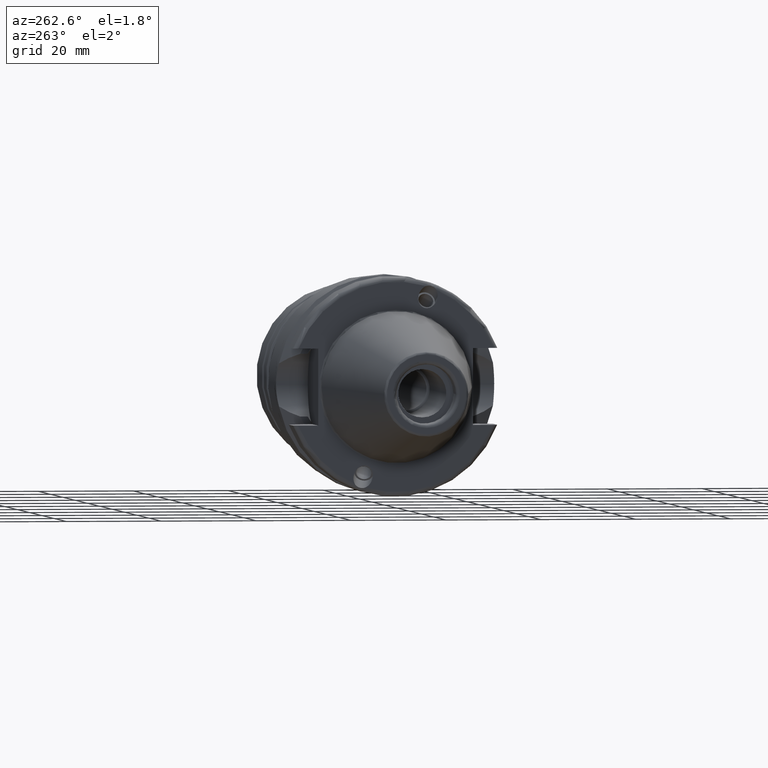
[diagram: clean part render]
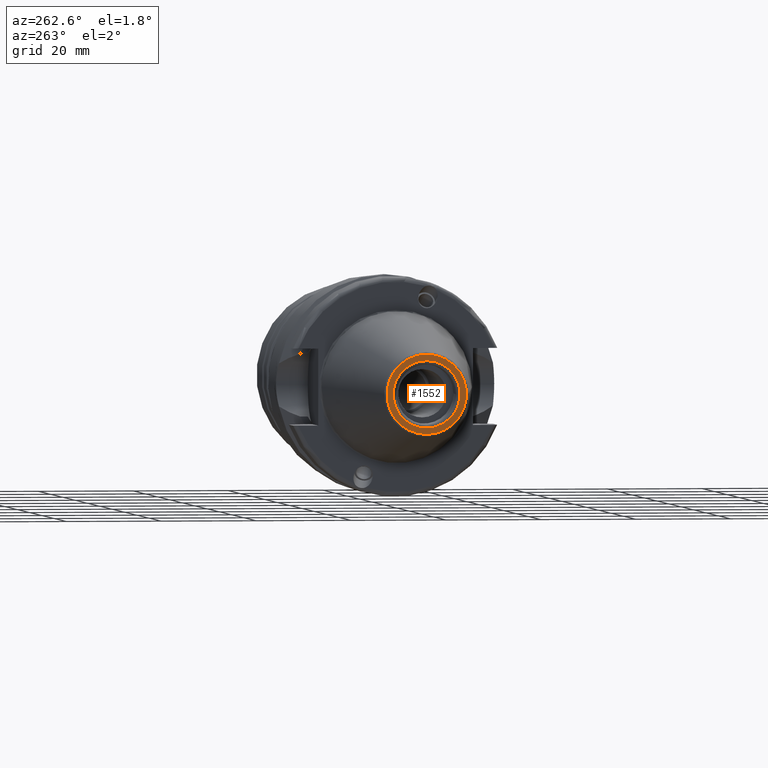
[diagram: same view with one face highlighted and labeled with its STEP entity id]
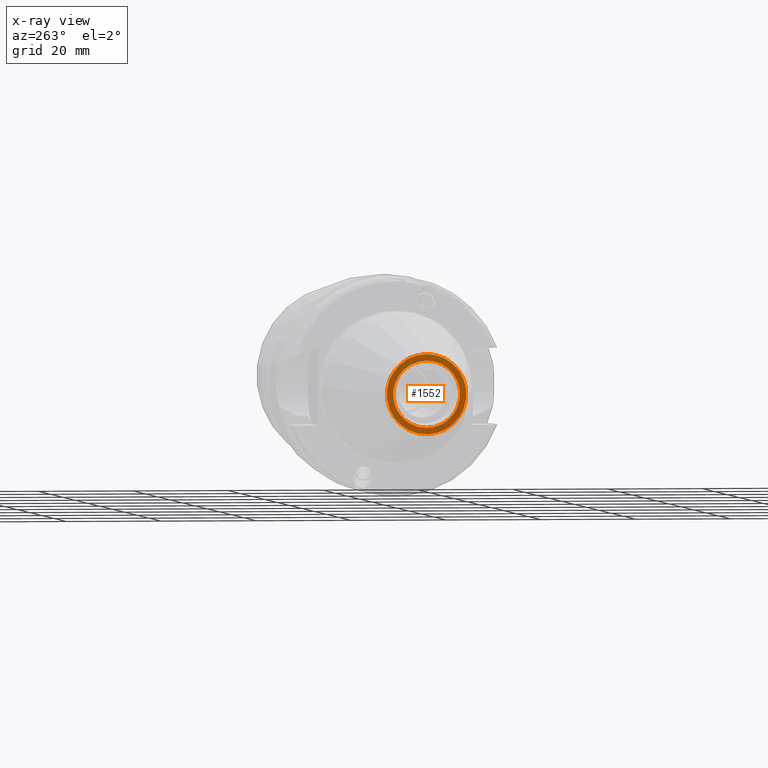
[diagram: x-ray of the same camera — body ghosted, the highlighted face saturated]
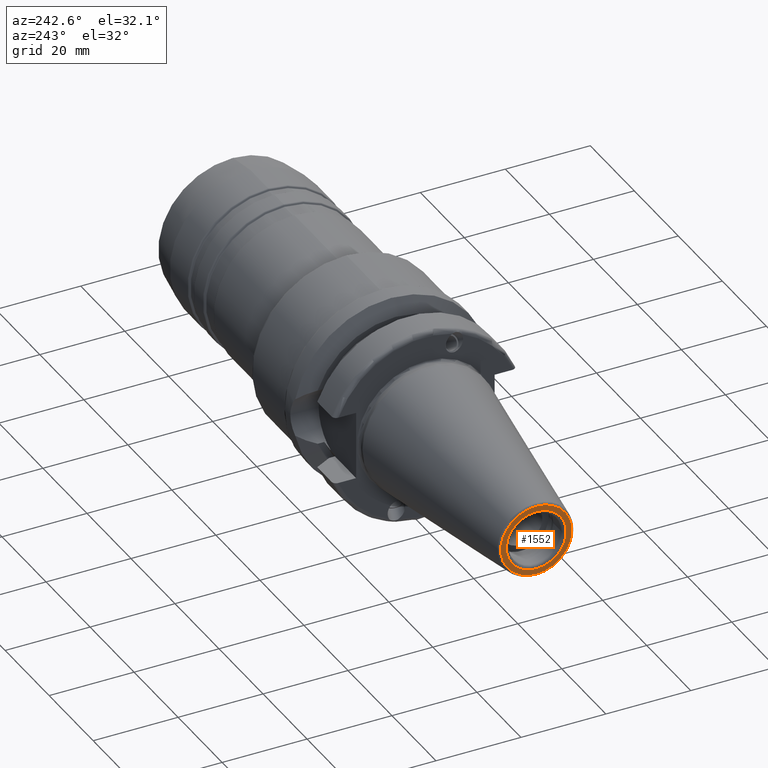
[diagram: same view with one face highlighted and labeled with its STEP entity id]
A machine part, auxiliary view. The second image highlights one B-rep face of the part: STEP entity #1552.
The next image is the same camera in x-ray: the body ghosted, the highlighted face saturated — about 0% of this face is hidden behind the body in this view.
A second angle (auxiliary view) of the same face is appended — the face is thin or edge-on in the first view.
In plain terms, the highlighted planar face has unit normal (-1, -0, 0).
Its self-contained STEP definition (entity closure, byte-faithful):
#80=FACE_BOUND('',#488,.T.);
#98=PLANE('',#1783);
#384=FACE_OUTER_BOUND('',#487,.T.);
#487=EDGE_LOOP('',(#1402));
#488=EDGE_LOOP('',(#1403));
#591=CIRCLE('',#1781,7.05);
#593=CIRCLE('',#1784,8.38429446518188);
#740=VERTEX_POINT('',#3044);
#741=VERTEX_POINT('',#3048);
#966=EDGE_CURVE('',#740,#740,#591,.T.);
#968=EDGE_CURVE('',#741,#741,#593,.T.);
#1402=ORIENTED_EDGE('',*,*,#968,.F.);
#1403=ORIENTED_EDGE('',*,*,#966,.T.);
#1552=ADVANCED_FACE('',(#384,#80),#98,.T.);
#1781=AXIS2_PLACEMENT_3D('',#3045,#2268,#2269);
#1783=AXIS2_PLACEMENT_3D('',#3047,#2272,#2273);
#1784=AXIS2_PLACEMENT_3D('',#3049,#2274,#2275);
#2268=DIRECTION('center_axis',(1.,1.62798202122572E-21,0.));
#2269=DIRECTION('ref_axis',(0.,0.,-1.));
#2272=DIRECTION('center_axis',(-1.,-1.62798202122572E-21,0.));
#2273=DIRECTION('ref_axis',(0.,0.,1.));
#2274=DIRECTION('center_axis',(1.,1.62798202122572E-21,0.));
#2275=DIRECTION('ref_axis',(0.,0.,-1.));
#3044=CARTESIAN_POINT('',(-48.4,1.21828078189914E-15,7.05));
#3045=CARTESIAN_POINT('Origin',(-48.4,2.08165677529802E-15,0.));
#3047=CARTESIAN_POINT('Origin',(-48.4,8.38429446518188,0.));
#3048=CARTESIAN_POINT('',(-48.4,1.05487683730863E-15,8.38429446518188));
#3049=CARTESIAN_POINT('Origin',(-48.4,2.08165677529802E-15,0.));